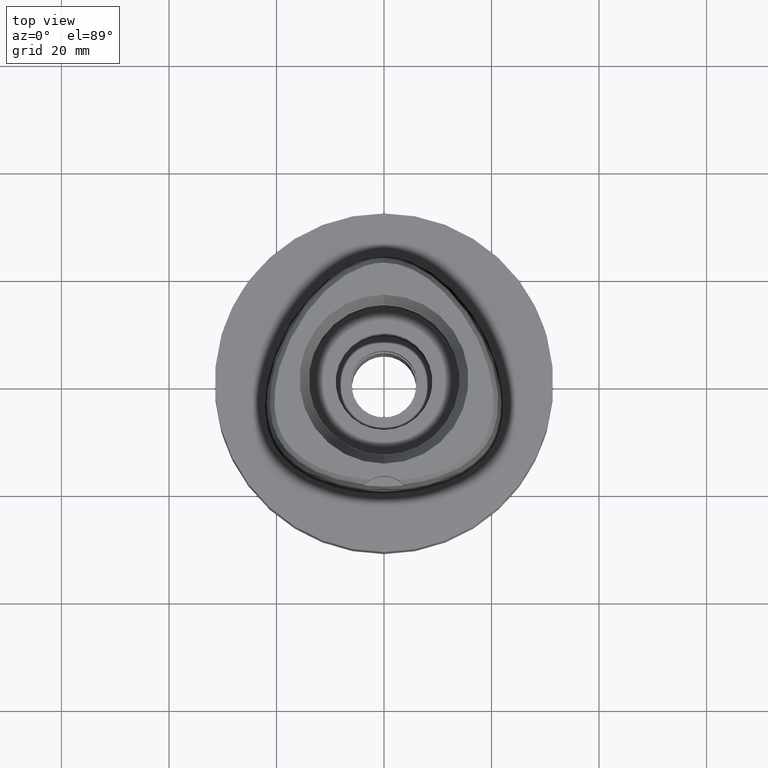
[diagram: clean part render]
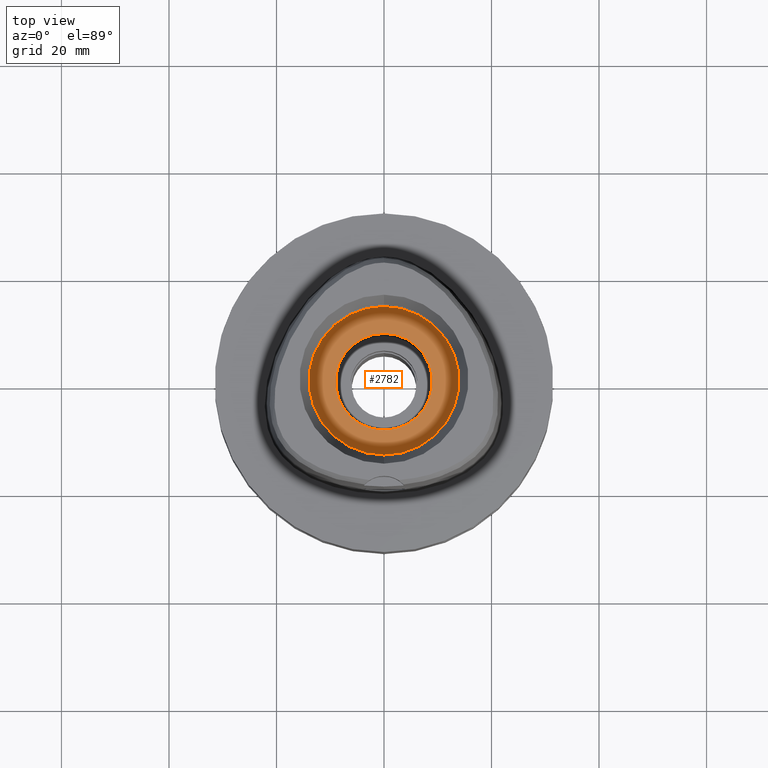
[diagram: same view with one face highlighted and labeled with its STEP entity id]
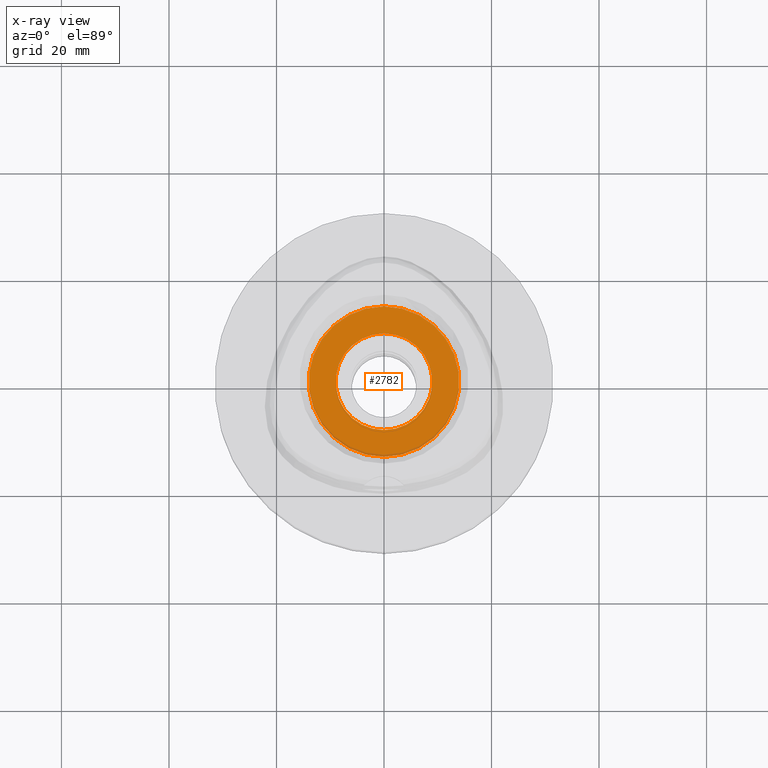
[diagram: x-ray of the same camera — body ghosted, the highlighted face saturated]
A machine part, top view. The second image highlights one B-rep face of the part: STEP entity #2782.
The next image is the same camera in x-ray: the body ghosted, the highlighted face saturated — about 3% of this face is hidden behind the body in this view.
In plain terms, the highlighted planar face has unit normal (0, 0, -1).
Its self-contained STEP definition (entity closure, byte-faithful):
#825=CARTESIAN_POINT('',(0.E0,0.E0,1.1E1));
#826=DIRECTION('',(0.E0,0.E0,-1.E0));
#827=DIRECTION('',(0.E0,1.E0,0.E0));
#828=AXIS2_PLACEMENT_3D('',#825,#826,#827);
#833=CARTESIAN_POINT('',(0.E0,0.E0,1.1E1));
#834=DIRECTION('',(0.E0,0.E0,-1.E0));
#835=DIRECTION('',(0.E0,-1.E0,0.E0));
#836=AXIS2_PLACEMENT_3D('',#833,#834,#835);
#841=CARTESIAN_POINT('',(0.E0,0.E0,1.1E1));
#842=DIRECTION('',(0.E0,0.E0,1.E0));
#843=DIRECTION('',(0.E0,1.E0,0.E0));
#844=AXIS2_PLACEMENT_3D('',#841,#842,#843);
#849=CARTESIAN_POINT('',(0.E0,0.E0,1.1E1));
#850=DIRECTION('',(0.E0,0.E0,1.E0));
#851=DIRECTION('',(0.E0,-1.E0,0.E0));
#852=AXIS2_PLACEMENT_3D('',#849,#850,#851);
#1648=CARTESIAN_POINT('',(0.E0,9.E0,1.1E1));
#1649=VERTEX_POINT('',#1648);
#1650=CARTESIAN_POINT('',(0.E0,-9.E0,1.1E1));
#1651=VERTEX_POINT('',#1650);
#1652=CARTESIAN_POINT('',(0.E0,1.4E1,1.1E1));
#1653=CARTESIAN_POINT('',(0.E0,-1.4E1,1.1E1));
#1654=VERTEX_POINT('',#1652);
#1655=VERTEX_POINT('',#1653);
#2767=CARTESIAN_POINT('',(0.E0,0.E0,1.1E1));
#2768=DIRECTION('',(0.E0,0.E0,-1.E0));
#2769=DIRECTION('',(0.E0,-1.E0,0.E0));
#2770=AXIS2_PLACEMENT_3D('',#2767,#2768,#2769);
#2771=PLANE('',#2770);
#2773=ORIENTED_EDGE('',*,*,#2772,.T.);
#2775=ORIENTED_EDGE('',*,*,#2774,.T.);
#2776=EDGE_LOOP('',(#2773,#2775));
#2777=FACE_OUTER_BOUND('',#2776,.F.);
#2778=ORIENTED_EDGE('',*,*,#2749,.T.);
#2779=ORIENTED_EDGE('',*,*,#2762,.T.);
#2780=EDGE_LOOP('',(#2778,#2779));
#2781=FACE_BOUND('',#2780,.F.);
#829=CIRCLE('',#828,1.4E1);
#837=CIRCLE('',#836,1.4E1);
#845=CIRCLE('',#844,9.E0);
#853=CIRCLE('',#852,9.E0);
#2749=EDGE_CURVE('',#1649,#1651,#845,.T.);
#2762=EDGE_CURVE('',#1651,#1649,#853,.T.);
#2772=EDGE_CURVE('',#1654,#1655,#829,.T.);
#2774=EDGE_CURVE('',#1655,#1654,#837,.T.);
#2782=ADVANCED_FACE('',(#2777,#2781),#2771,.F.);